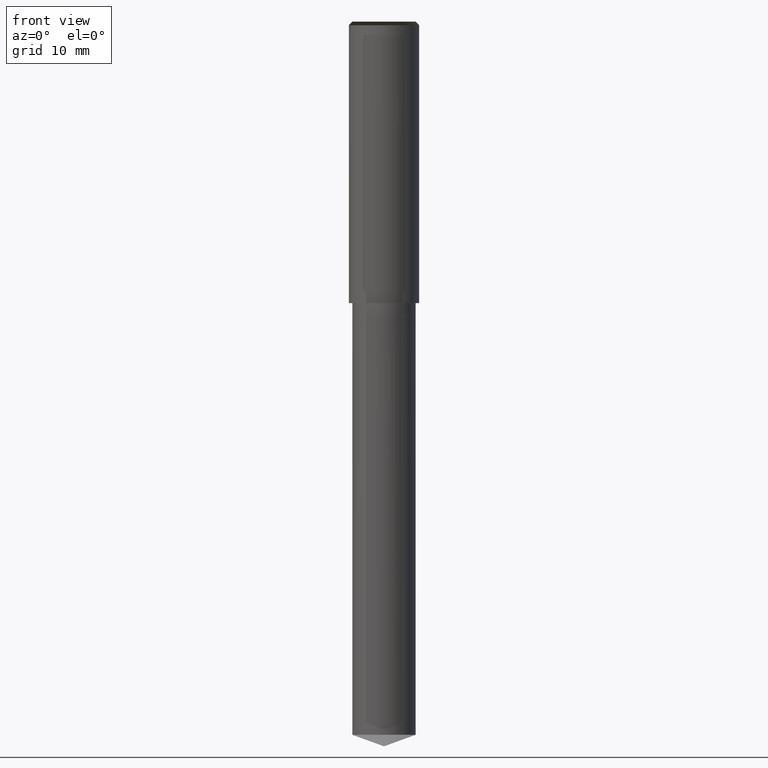
[diagram: clean part render]
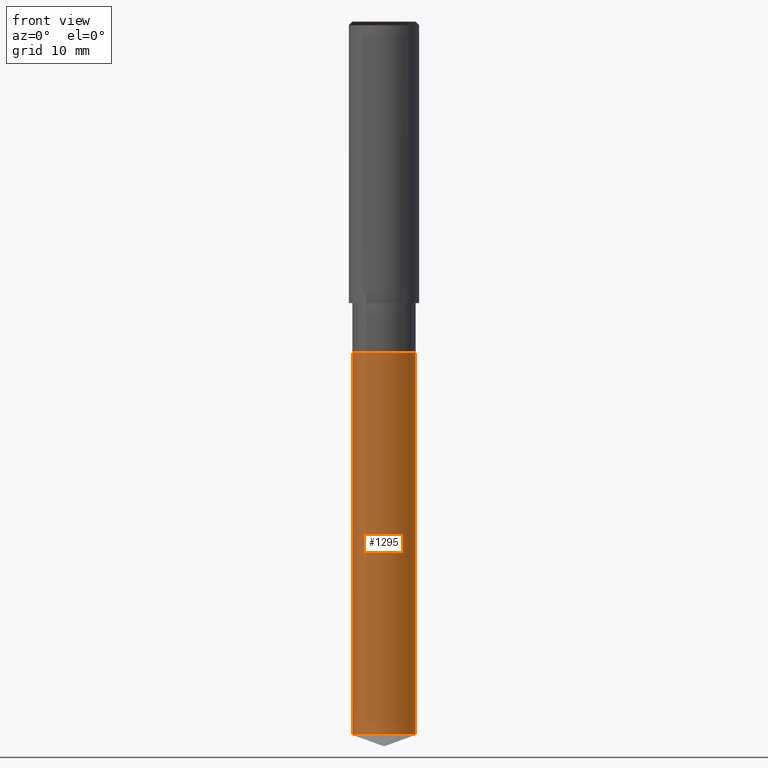
[diagram: same view with one face highlighted and labeled with its STEP entity id]
A machine part, front view. The second image highlights one B-rep face of the part: STEP entity #1295.
In plain terms, the highlighted face is a freeform B-spline surface patch.
Its self-contained STEP definition (entity closure, byte-faithful):
#1145=CARTESIAN_POINT('',(4.5,0.0,-61.362133945802));
#1149=CARTESIAN_POINT('',(-4.5,0.0,-61.362133945802));
#1150=CARTESIAN_POINT('',(4.5,0.0,-7.0));
#1154=CARTESIAN_POINT('',(-4.5,0.0,-7.0));
#1156=CARTESIAN_POINT('',(-4.5,-4.5,-61.362133945802));
#1157=CARTESIAN_POINT('',(0.0,-4.5,-61.362133945802));
#1158=CARTESIAN_POINT('',(4.5,-4.5,-61.362133945802));
#1159=CARTESIAN_POINT('',(-4.5,-4.5,-7.0));
#1160=CARTESIAN_POINT('',(0.0,-4.5,-7.0));
#1161=CARTESIAN_POINT('',(4.5,-4.5,-7.0));
#1276=(
BOUNDED_SURFACE()
B_SPLINE_SURFACE(1,2,(
(#1149,#1156,#1157,#1158,#1145),
(#1154,#1159,#1160,#1161,#1150)
), .UNSPECIFIED.,.F.,.F.,.F.)
B_SPLINE_SURFACE_WITH_KNOTS((2,2),(3,2,3),(
0.0,1.0),(
0.0,0.5,1.0), .UNSPECIFIED.)
GEOMETRIC_REPRESENTATION_ITEM()
RATIONAL_B_SPLINE_SURFACE(((1.0,0.707106781187,1.0,0.707106781187,1.0),
(1.0,0.707106781187,1.0,0.707106781187,1.0)
))
REPRESENTATION_ITEM('')
SURFACE()
);
#1277=(
BOUNDED_CURVE()
B_SPLINE_CURVE(2,(#1145,#1158,#1157,#1156,#1149),.UNSPECIFIED.,.F.,.F.)
B_SPLINE_CURVE_WITH_KNOTS((3,2,3),
(0.0,0.5,1.0),.UNSPECIFIED.)
CURVE()
GEOMETRIC_REPRESENTATION_ITEM()
RATIONAL_B_SPLINE_CURVE((1.0,0.707106781187,1.0,0.707106781187,1.0))
REPRESENTATION_ITEM('')
);
#1278=(
BOUNDED_CURVE()
B_SPLINE_CURVE(1,(#1149,#1154),.UNSPECIFIED.,.F.,.F.)
B_SPLINE_CURVE_WITH_KNOTS((2,2),
(0.0,1.0),.UNSPECIFIED.)
CURVE()
GEOMETRIC_REPRESENTATION_ITEM()
RATIONAL_B_SPLINE_CURVE((1.0,1.0))
REPRESENTATION_ITEM('')
);
#1279=(
BOUNDED_CURVE()
B_SPLINE_CURVE(2,(#1154,#1159,#1160,#1161,#1150),.UNSPECIFIED.,.F.,.F.)
B_SPLINE_CURVE_WITH_KNOTS((3,2,3),
(0.0,0.5,1.0),.UNSPECIFIED.)
CURVE()
GEOMETRIC_REPRESENTATION_ITEM()
RATIONAL_B_SPLINE_CURVE((1.0,0.707106781187,1.0,0.707106781187,1.0))
REPRESENTATION_ITEM('')
);
#1280=(
BOUNDED_CURVE()
B_SPLINE_CURVE(1,(#1150,#1145),.UNSPECIFIED.,.F.,.F.)
B_SPLINE_CURVE_WITH_KNOTS((2,2),
(0.0,1.0),.UNSPECIFIED.)
CURVE()
GEOMETRIC_REPRESENTATION_ITEM()
RATIONAL_B_SPLINE_CURVE((1.0,1.0))
REPRESENTATION_ITEM('')
);
#1281=VERTEX_POINT('',#1145);
#1282=VERTEX_POINT('',#1149);
#1283=VERTEX_POINT('',#1150);
#1284=VERTEX_POINT('',#1154);
#1285=EDGE_CURVE('',#1281,#1282,#1277,.T.);
#1286=EDGE_CURVE('',#1282,#1284,#1278,.T.);
#1287=EDGE_CURVE('',#1284,#1283,#1279,.T.);
#1288=EDGE_CURVE('',#1283,#1281,#1280,.T.);
#1289=ORIENTED_EDGE('',*,*,#1285,.T.);
#1290=ORIENTED_EDGE('',*,*,#1286,.T.);
#1291=ORIENTED_EDGE('',*,*,#1287,.T.);
#1292=ORIENTED_EDGE('',*,*,#1288,.T.);
#1293=EDGE_LOOP('',(#1289,#1290,#1291,#1292));
#1294=FACE_OUTER_BOUND('',#1293,.T.);
#1295=ADVANCED_FACE('',(#1294),#1276,.T.);